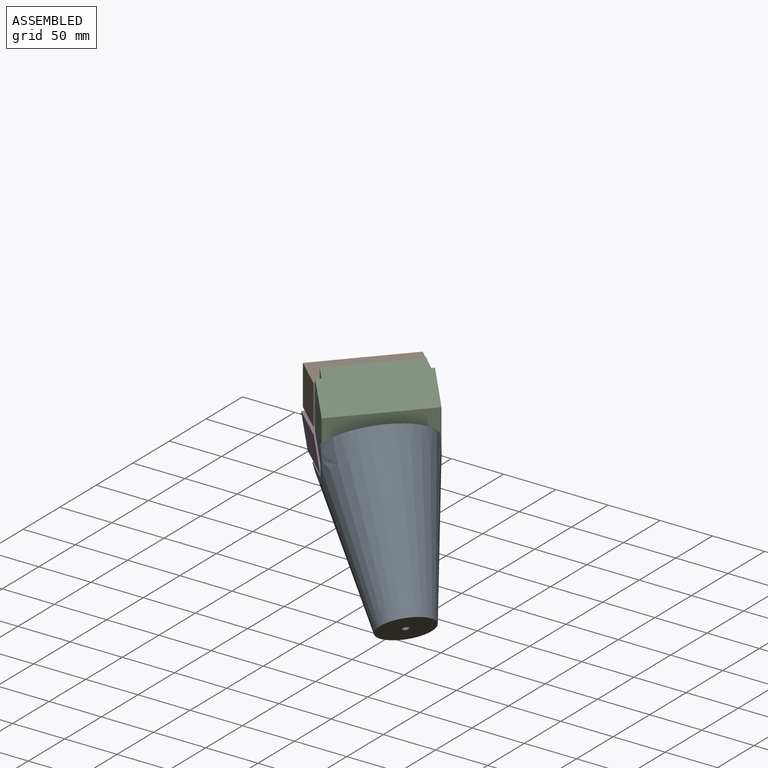
[diagram: assembled view]
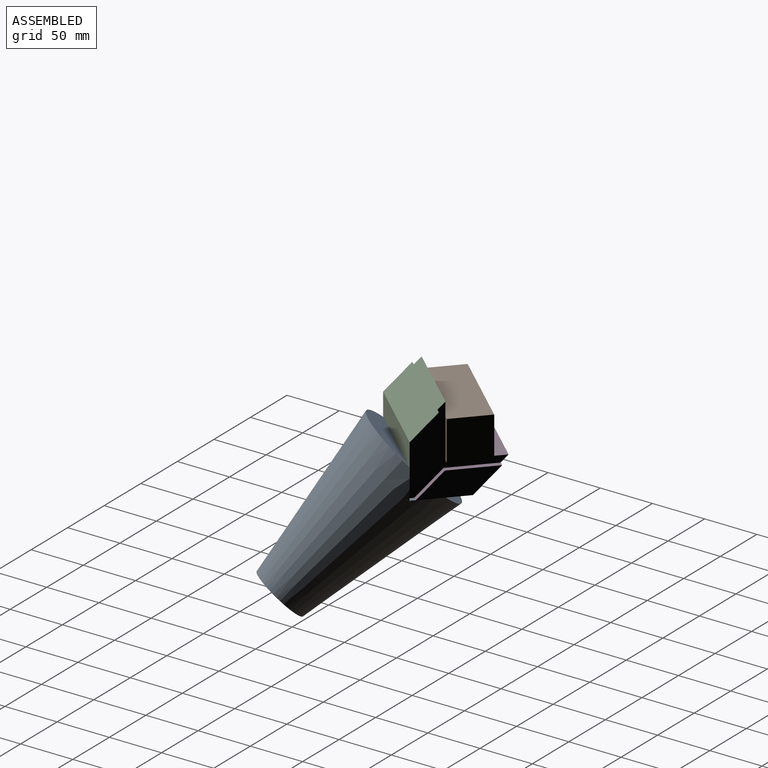
[diagram: assembled view, second angle]
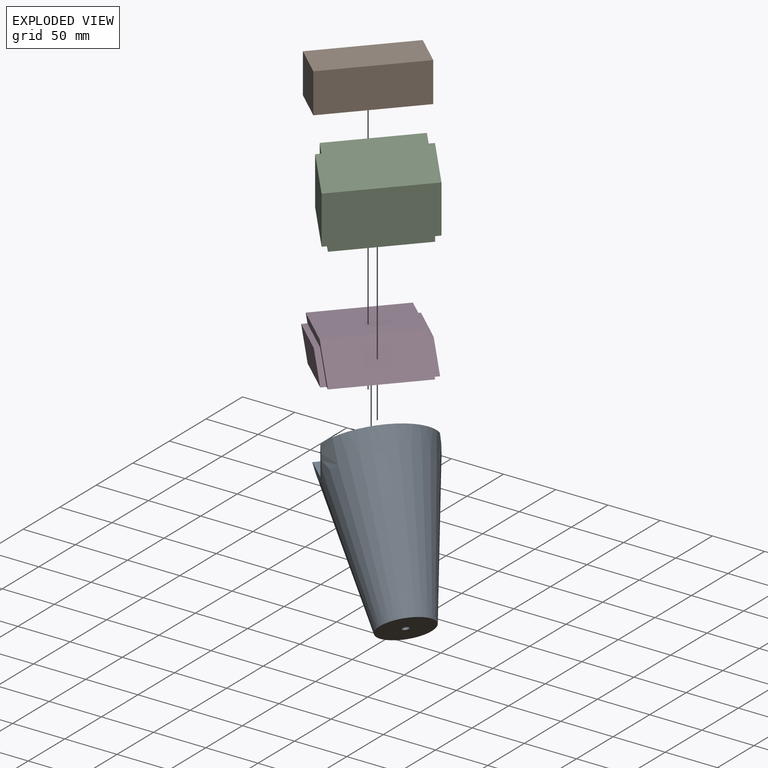
[diagram: exploded view]
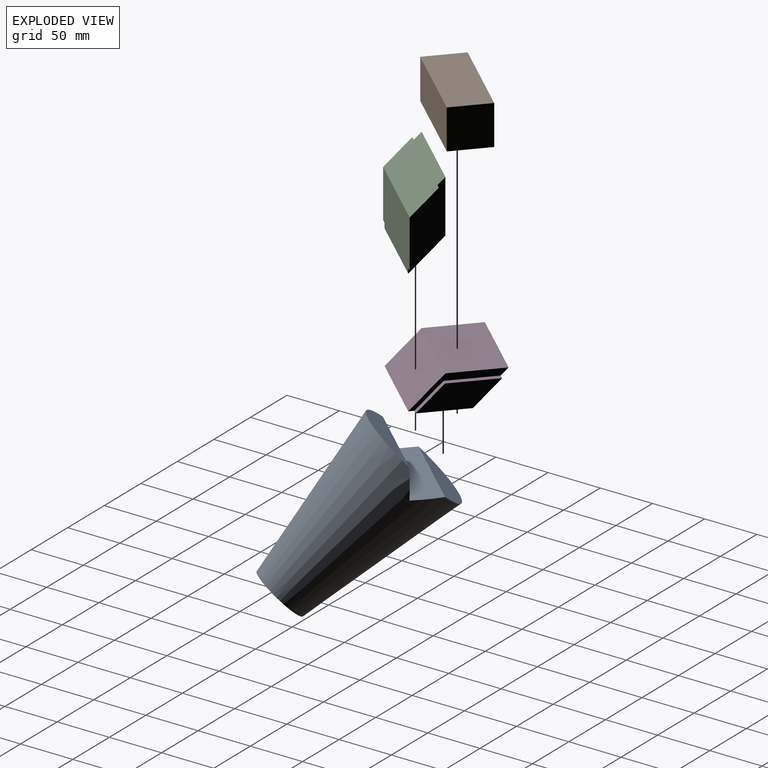
[diagram: exploded view, second angle]
ASSEMBLY  parts=4 mates=6
PART A: 14 faces, bbox 104.5x152.4x104.5 mm
  f0: cone r=25.4mm half-angle=10deg, axis (0,-1,0), area 36630.4mm2, adj f1,f2,f3,f4,f5,f6,f7,f8
  f1: plane 96.62x0.13mm, normal (1,0,0), area 12.3mm2, adj f0,f3,f5,f9
  f2: plane 96.62x0.13mm, normal (-1,0,0), area 12.3mm2, adj f0,f3,f4,f9
  f3: plane 96.6x0.25mm, normal (0,-1,0), area 24.5mm2, adj f0,f1,f2,f9
  f4: plane 97.37x20.19mm, normal (-0.71,-0.71,0), area 2770.6mm2, adj f0,f2,f7,f9
  f5: plane 97.37x20.19mm, normal (0.71,-0.71,0), area 2770.6mm2, adj f0,f1,f6,f9
  f6: plane 96.32x31.95mm, normal (0,-1,0), area 2222.5mm2, adj f0,f5,f11
  f7: plane 96.32x31.95mm, normal (0,-1,0), area 2222.5mm2, adj f0,f4,f10
  f8: plane 50.8x50.8mm, normal (0,1,0), area 1995.2mm2, adj f0,f12
  f9: plane 40.65x24.76mm, normal (0,0,-1), area 270.5mm2, adj f0,f1,f2,f3,f4,f5,f10,f11
  f10: plane 1.33x0.25mm, normal (-1,0,0), area 0.2mm2, adj f0,f7,f9
  f11: plane 1.33x0.25mm, normal (1,0,0), area 0.2mm2, adj f0,f6,f9
  f12: cylinder r=3.17mm len=25.4mm, axis (0,1,0), area 506.7mm2, adj f8,f13
  f13: plane 6.35x6.35mm, normal (0,1,0), area 31.7mm2, adj f12
PART B: 6 faces, bbox 38.1x96.3x38.1 mm
  f0: plane 96.32x38.1mm, normal (0,0,1), area 3669.9mm2, adj f1,f3,f4,f5
  f1: plane 96.32x38.1mm, normal (-1,0,0), area 3669.9mm2, adj f0,f2,f4,f5
  f2: plane 96.32x38.1mm, normal (0,0,-1), area 3669.9mm2, adj f1,f3,f4,f5
  f3: plane 96.32x38.1mm, normal (1,0,0), area 3669.9mm2, adj f0,f2,f4,f5
  f4: plane 38.1x38.1mm, normal (0,-1,0), area 1451.6mm2, adj f0,f1,f2,f3
  f5: plane 38.1x38.1mm, normal (0,1,0), area 1451.6mm2, adj f0,f1,f2,f3
PART C: 12 faces, bbox 80.6x96.3x29.8 mm
  f0: plane 86.16x50.8mm, normal (0,0,1), area 4377mm2, adj f1,f2,f7,f11
  f1: plane 86.16x29.84mm, normal (0.71,0,0.71), area 3635.8mm2, adj f0,f3,f7,f11
  f2: plane 96.32x29.84mm, normal (-0.71,0,-0.71), area 3973.3mm2, adj f0,f3,f4,f5,f7,f8,f10,f11
  f3: plane 96.32x50.8mm, normal (0,0,-1), area 4843.9mm2, adj f1,f2,f4,f5,f6,f7,f9,f11
  f4: plane 69.44x23.49mm, normal (0,-1,0), area 1079.3mm2, adj f2,f3,f6,f8
  f5: plane 69.44x23.49mm, normal (0,1,0), area 1079.3mm2, adj f2,f3,f9,f10
  f6: plane 23.49x23.49mm, normal (0.71,0,0.71), area 168.7mm2, adj f3,f4,f7,f8
  f7: plane 80.64x29.84mm, normal (0,-1,0), area 436.5mm2, adj f0,f1,f2,f3,f6,f8
  f8: plane 45.95x5.08mm, normal (0,0,1), area 233.4mm2, adj f2,f4,f6,f7
  f9: plane 23.49x23.49mm, normal (0.71,0,0.71), area 168.7mm2, adj f3,f5,f10,f11
  f10: plane 45.95x5.08mm, normal (0,0,1), area 233.4mm2, adj f2,f5,f9,f11
  f11: plane 80.64x29.84mm, normal (0,1,0), area 436.5mm2, adj f0,f1,f2,f3,f9,f10
PART D: same geometry as C
PLACE A rot(axis=(-0.82,-0.02,-0.57),118.6deg) t=(260.55,-134.36,-427.56)mm
PLACE B rot(axis=(0,0,-1),42.5deg) t=(190.67,-3.31,-304.35)mm
PLACE C rot(axis=(-0.68,0.27,0.68),150.3deg) t=(131.12,-79.4,-320.27)mm
PLACE D rot(axis=(0,0,-1),42.5deg) t=(214.83,-25.45,-295)mm
MATE planar B.f2 <-> D.f0  axis (0,0,-1) through (156.49,-37.32,-304.32)mm
MATE fastened C.f1 <-> D.f1  axis (-0.52,0.48,-0.71) through (181.53,-60.27,-319.24)mm
MATE planar D.f3 <-> A.f5  axis (0,0,-1) through (173.63,-53.03,-334.16)mm
MATE planar B.f5 <-> D.f5  axis (0.68,0.74,0) through (174.98,11.06,-285.27)mm
MATE planar B.f3 <-> C.f0  axis (0.74,-0.68,0) through (170.53,-50.19,-285.27)mm
MATE planar C.f3 <-> A.f4  axis (0.74,-0.68,0) through (192.53,-70.35,-283.36)mm
